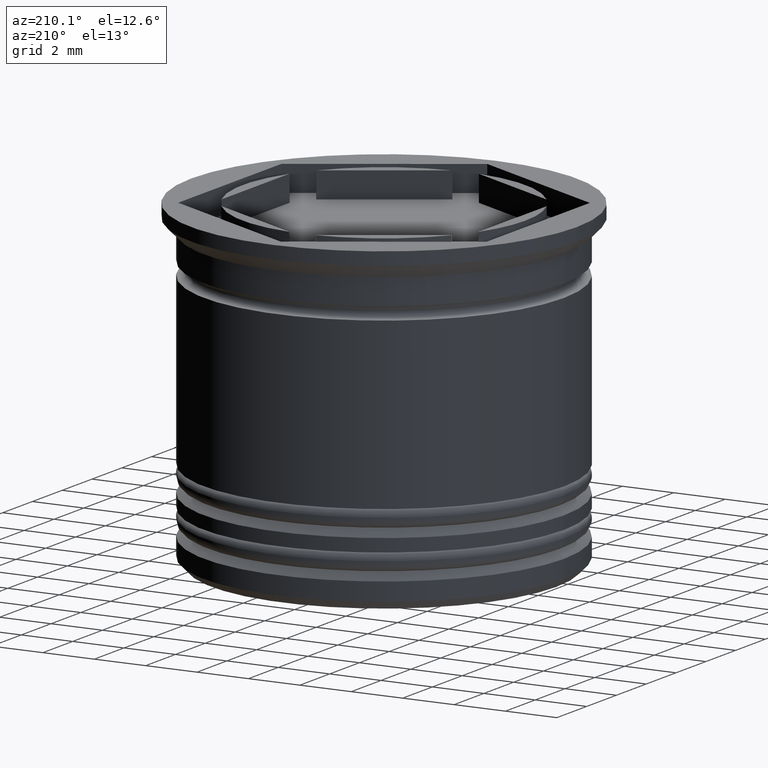
[diagram: clean part render]
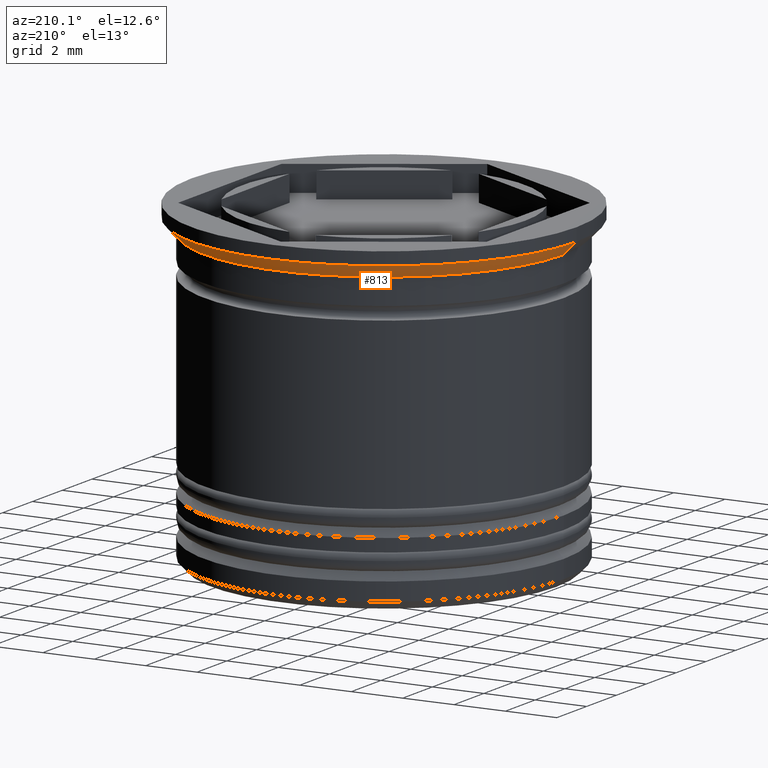
[diagram: same view with one face highlighted and labeled with its STEP entity id]
A machine part, auxiliary view. The second image highlights one B-rep face of the part: STEP entity #813.
In plain terms, the highlighted conical surface has half-angle 45 deg.
Its self-contained STEP definition (entity closure, byte-faithful):
#10 = LINE ( 'NONE', #622, #1186 ) ;
#187 = CARTESIAN_POINT ( 'NONE',  ( 7.500000000000000000, 0.000000000000000000, -0.4999999999999930611 ) ) ;
#240 = ORIENTED_EDGE ( 'NONE', *, *, #854, .T. ) ;
#278 = CIRCLE ( 'NONE', #1875, 7.500000000000000000 ) ;
#299 = CARTESIAN_POINT ( 'NONE',  ( -7.500000000000000000, 9.184850993605147944E-16, -0.4999999999999930611 ) ) ;
#306 = AXIS2_PLACEMENT_3D ( 'NONE', #1131, #543, #1747 ) ;
#413 = EDGE_LOOP ( 'NONE', ( #240, #1436, #1268, #423 ) ) ;
#422 = EDGE_CURVE ( 'NONE', #1523, #615, #10, .T. ) ;
#423 = ORIENTED_EDGE ( 'NONE', *, *, #1255, .F. ) ;
#447 = CARTESIAN_POINT ( 'NONE',  ( 0.000000000000000000, 0.000000000000000000, -0.4999999999999930611 ) ) ;
#497 = DIRECTION ( 'NONE',  ( -1.000000000000000000, 0.000000000000000000, 0.000000000000000000 ) ) ;
#504 = FACE_OUTER_BOUND ( 'NONE', #413, .T. ) ;
#543 = DIRECTION ( 'NONE',  ( -0.000000000000000000, -0.000000000000000000, 1.000000000000000000 ) ) ;
#615 = VERTEX_POINT ( 'NONE', #299 ) ;
#622 = CARTESIAN_POINT ( 'NONE',  ( -7.500000000000000000, 9.184850993605147944E-16, -0.4999999999999930611 ) ) ;
#635 = DIRECTION ( 'NONE',  ( -0.000000000000000000, -0.000000000000000000, 1.000000000000000000 ) ) ;
#640 = LINE ( 'NONE', #187, #1963 ) ;
#693 = DIRECTION ( 'NONE',  ( -0.000000000000000000, -0.000000000000000000, 1.000000000000000000 ) ) ;
#726 = CARTESIAN_POINT ( 'NONE',  ( -6.999999999999999112, 8.572527594031472204E-16, -0.9999999999999995559 ) ) ;
#765 = CARTESIAN_POINT ( 'NONE',  ( 6.999999999999999112, 0.000000000000000000, -0.9999999999999995559 ) ) ;
#796 = DIRECTION ( 'NONE',  ( 0.7071067811865487940, 0.000000000000000000, 0.7071067811865463515 ) ) ;
#813 = ADVANCED_FACE ( 'NONE', ( #504 ), #1738, .T. ) ;
#854 = EDGE_CURVE ( 'NONE', #1292, #1523, #1160, .T. ) ;
#946 = DIRECTION ( 'NONE',  ( 1.000000000000000000, 0.000000000000000000, 0.000000000000000000 ) ) ;
#1131 = CARTESIAN_POINT ( 'NONE',  ( 0.000000000000000000, 0.000000000000000000, -0.9999999999999995559 ) ) ;
#1160 = CIRCLE ( 'NONE', #306, 6.999999999999999112 ) ;
#1186 = VECTOR ( 'NONE', #1232, 1000.000000000000000 ) ;
#1232 = DIRECTION ( 'NONE',  ( -0.7071067811865487940, 8.659560562354948882E-17, 0.7071067811865463515 ) ) ;
#1255 = EDGE_CURVE ( 'NONE', #1292, #1892, #640, .T. ) ;
#1268 = ORIENTED_EDGE ( 'NONE', *, *, #1969, .F. ) ;
#1292 = VERTEX_POINT ( 'NONE', #765 ) ;
#1436 = ORIENTED_EDGE ( 'NONE', *, *, #422, .T. ) ;
#1465 = CARTESIAN_POINT ( 'NONE',  ( 7.500000000000000000, 0.000000000000000000, -0.4999999999999930611 ) ) ;
#1505 = AXIS2_PLACEMENT_3D ( 'NONE', #1587, #693, #946 ) ;
#1523 = VERTEX_POINT ( 'NONE', #726 ) ;
#1587 = CARTESIAN_POINT ( 'NONE',  ( 0.000000000000000000, 0.000000000000000000, -0.4999999999999930611 ) ) ;
#1738 = CONICAL_SURFACE ( 'NONE', #1505, 7.500000000000000000, 0.7853981633974500554 ) ;
#1747 = DIRECTION ( 'NONE',  ( 1.000000000000000000, 0.000000000000000000, 0.000000000000000000 ) ) ;
#1875 = AXIS2_PLACEMENT_3D ( 'NONE', #447, #635, #497 ) ;
#1892 = VERTEX_POINT ( 'NONE', #1465 ) ;
#1963 = VECTOR ( 'NONE', #796, 1000.000000000000000 ) ;
#1969 = EDGE_CURVE ( 'NONE', #1892, #615, #278, .T. ) ;